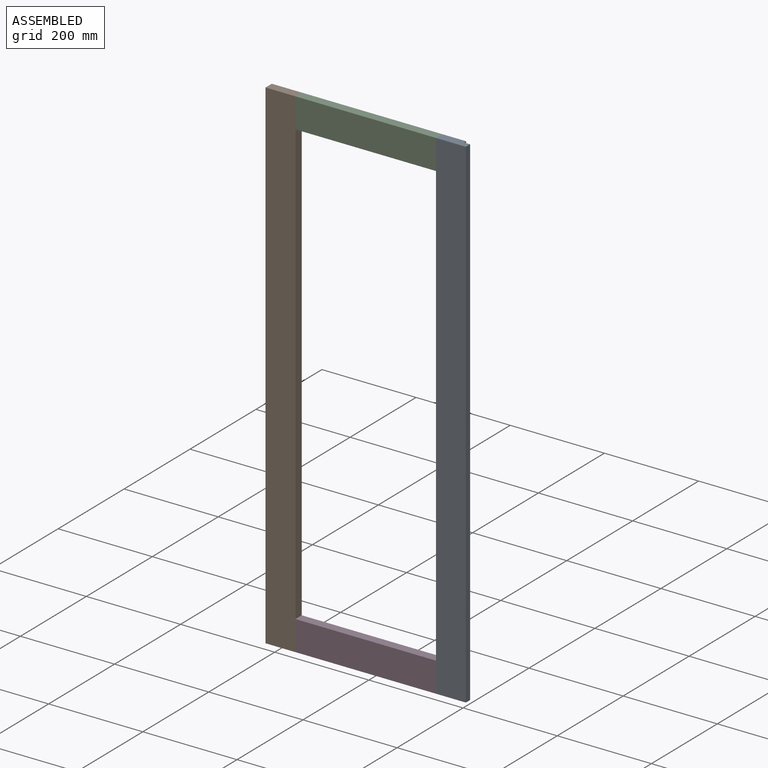
[diagram: assembled view]
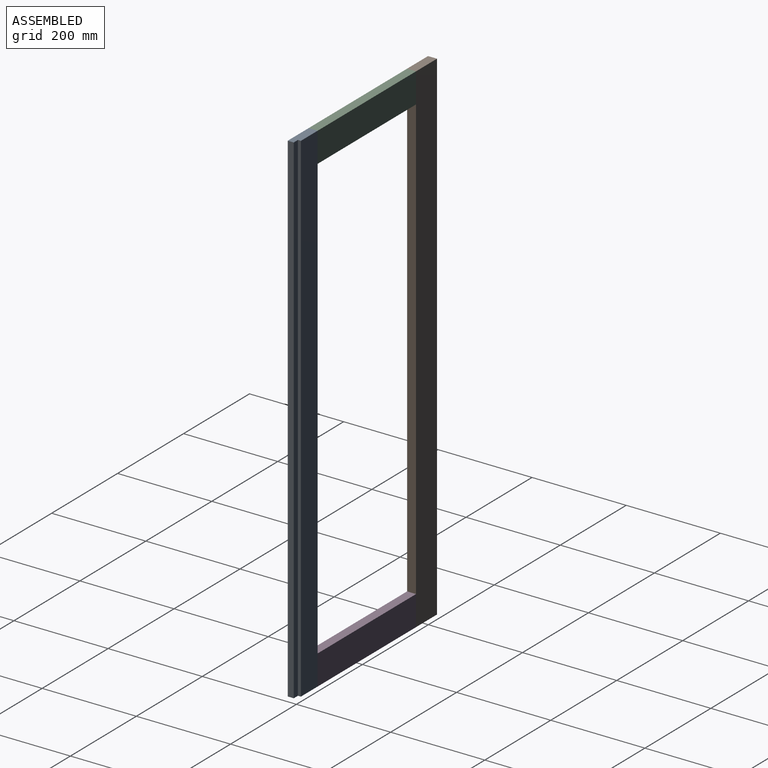
[diagram: assembled view, second angle]
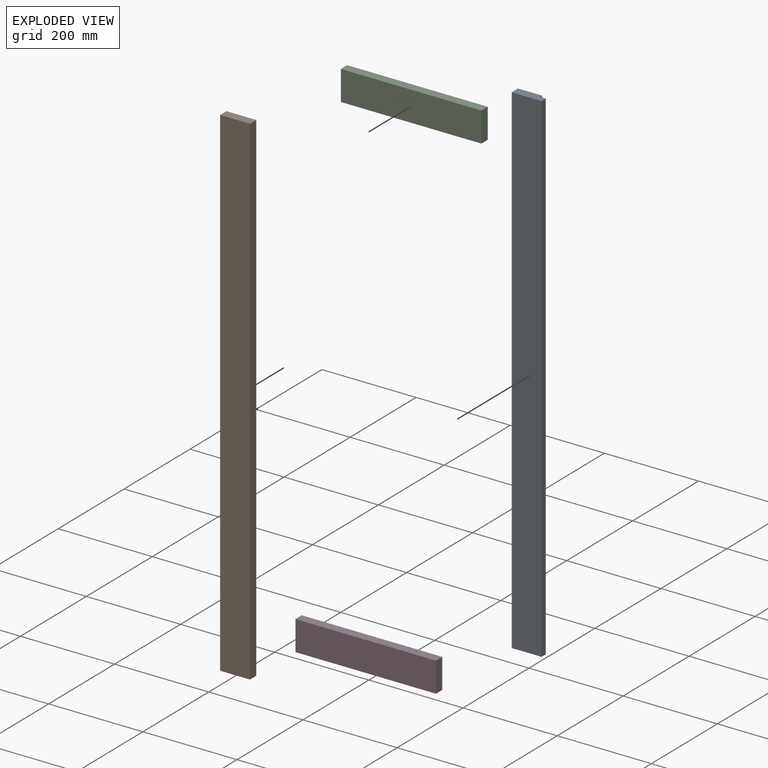
[diagram: exploded view]
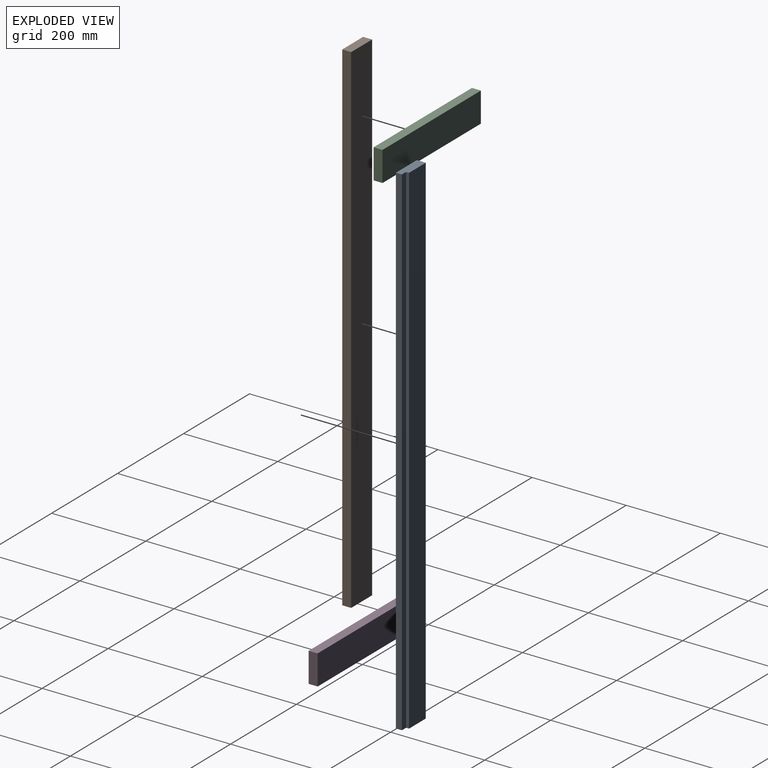
[diagram: exploded view, second angle]
ASSEMBLY  parts=4 mates=3
PART A: 8 faces, bbox 63.5x19.1x1066.8 mm
  f0: plane 1066.8x12.7mm, normal (1,0,0), area 13548.4mm2, adj f1,f2,f3,f7
  f1: plane 63.5x19.05mm, normal (0,0,1), area 1129mm2, adj f0,f3,f4,f5,f6,f7
  f2: plane 63.5x19.05mm, normal (0,0,-1), area 1129mm2, adj f0,f3,f4,f5,f6,f7
  f3: plane 1066.8x63.5mm, normal (0,-1,0), area 67741.8mm2, adj f0,f1,f2,f5
  f4: plane 1066.8x50.8mm, normal (0,1,0), area 54193.4mm2, adj f1,f2,f5,f6
  f5: plane 1066.8x19.05mm, normal (-1,0,0), area 20322.5mm2, adj f1,f2,f3,f4
  f6: plane 1066.8x6.35mm, normal (1,0,0), area 6774.2mm2, adj f1,f2,f4,f7
  f7: plane 1066.8x12.7mm, normal (0,1,0), area 13548.4mm2, adj f0,f1,f2,f6
PART B: 6 faces, bbox 63.5x19.1x1066.8 mm
  f0: plane 1066.8x63.5mm, normal (0,-1,0), area 67741.8mm2, adj f1,f3,f4,f5
  f1: plane 1066.8x19.05mm, normal (1,0,0), area 20322.5mm2, adj f0,f2,f4,f5
  f2: plane 1066.8x63.5mm, normal (0,1,0), area 67741.8mm2, adj f1,f3,f4,f5
  f3: plane 1066.8x19.05mm, normal (-1,0,0), area 20322.5mm2, adj f0,f2,f4,f5
  f4: plane 63.5x19.05mm, normal (0,0,1), area 1209.7mm2, adj f0,f1,f2,f3
  f5: plane 63.5x19.05mm, normal (0,0,-1), area 1209.7mm2, adj f0,f1,f2,f3
PART C: 6 faces, bbox 298.5x19.1x63.5 mm
  f0: plane 298.45x63.5mm, normal (0,1,0), area 18951.6mm2, adj f1,f3,f4,f5
  f1: plane 298.45x19.05mm, normal (0,0,1), area 5685.5mm2, adj f0,f2,f4,f5
  f2: plane 298.45x63.5mm, normal (0,-1,0), area 18951.6mm2, adj f1,f3,f4,f5
  f3: plane 298.45x19.05mm, normal (0,0,-1), area 5685.5mm2, adj f0,f2,f4,f5
  f4: plane 63.5x19.05mm, normal (1,0,0), area 1209.7mm2, adj f0,f1,f2,f3
  f5: plane 63.5x19.05mm, normal (-1,0,0), area 1209.7mm2, adj f0,f1,f2,f3
PART D: same geometry as C
PLACE A t=(180.98,0,-501.65)mm
PLACE B t=(-180.98,0,-501.65)mm
PLACE C at identity fixed
PLACE D t=(0,0,-1003.3)mm
MATE fastened D.f2 <-> B.f0  axis (0,-1,0) through (-149.23,-9.53,-1035.05)mm
MATE fastened C.f2 <-> B.f0  axis (0,-1,0) through (-149.23,-9.52,31.75)mm
MATE fastened A.f3 <-> D.f2  axis (0,-1,0) through (149.23,-9.53,-1035.05)mm
